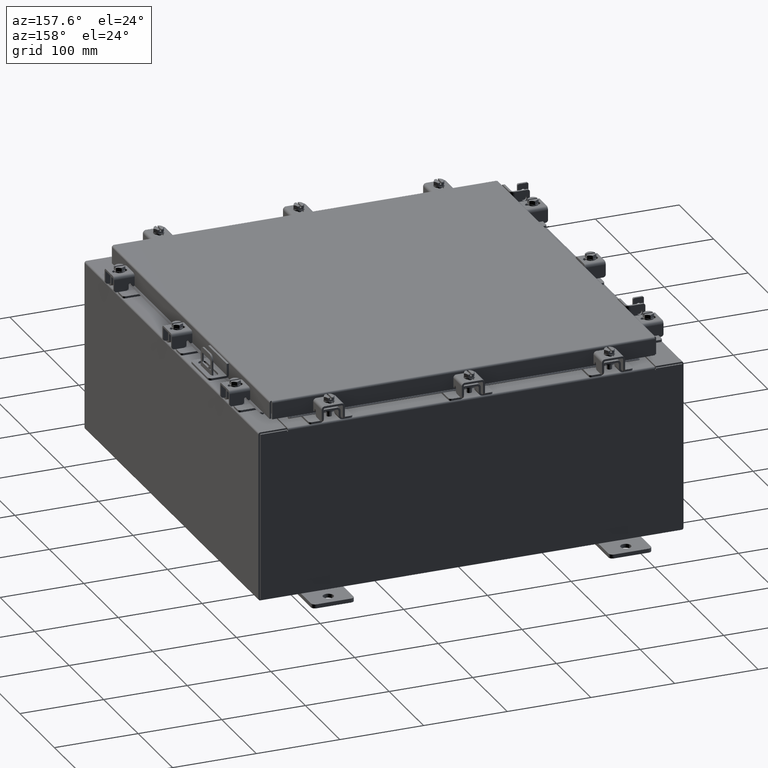
[diagram: clean part render]
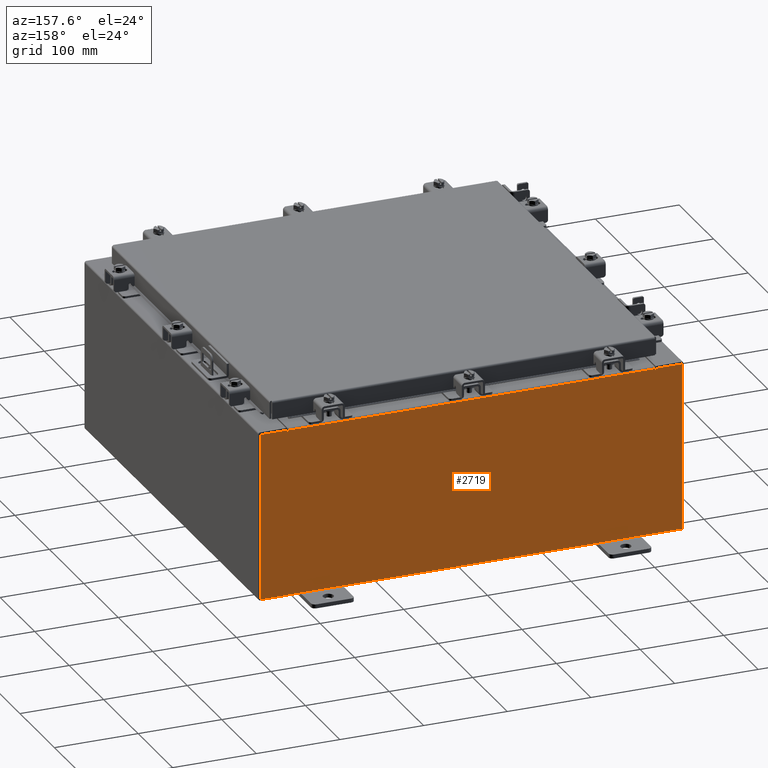
[diagram: same view with one face highlighted and labeled with its STEP entity id]
A machine part, auxiliary view. The second image highlights one B-rep face of the part: STEP entity #2719.
In plain terms, the highlighted planar face has unit normal (0, -1, 0).
Its self-contained STEP definition (entity closure, byte-faithful):
#117 = DIRECTION ( 'NONE',  ( 0.0000000000000000000, 0.0000000000000000000, -1.000000000000000000 ) ) ;
#328 = VERTEX_POINT ( 'NONE', #21224 ) ;
#347 = LINE ( 'NONE', #10814, #14259 ) ;
#425 = ORIENTED_EDGE ( 'NONE', *, *, #22102, .T. ) ;
#662 = VECTOR ( 'NONE', #8245, 39.37007874015748100 ) ;
#1311 = CARTESIAN_POINT ( 'NONE',  ( -9.925300000000000000, 0.0000000000000000000, 3.925299999999999600 ) ) ;
#1409 = CARTESIAN_POINT ( 'NONE',  ( -8.674549999999996400, 0.0000000000000000000, 3.925299999999999600 ) ) ;
#1565 = DIRECTION ( 'NONE',  ( 0.0000000000000000000, -0.0000000000000000000, -1.000000000000000000 ) ) ;
#1576 = DIRECTION ( 'NONE',  ( 0.0000000000000000000, 0.0000000000000000000, 1.000000000000000000 ) ) ;
#1751 = CARTESIAN_POINT ( 'NONE',  ( 8.674549999999747700, -0.0000000000000000000, -5.647877341832665300E-013 ) ) ;
#1822 = DIRECTION ( 'NONE',  ( 0.0000000000000000000, 0.0000000000000000000, -1.000000000000000000 ) ) ;
#2719 = ADVANCED_FACE ( 'NONE', ( #10620 ), #3084, .F. ) ;
#2794 = VECTOR ( 'NONE', #20768, 39.37007874015748100 ) ;
#2861 = DIRECTION ( 'NONE',  ( 0.0000000000000000000, -1.000000000000000000, 0.0000000000000000000 ) ) ;
#3023 = LINE ( 'NONE', #13218, #21031 ) ;
#3084 = PLANE ( 'NONE',  #21996 ) ;
#3567 = CARTESIAN_POINT ( 'NONE',  ( 9.925300000000000000, 0.0000000000000000000, 3.925299999999999600 ) ) ;
#3769 = DIRECTION ( 'NONE',  ( 1.000000000000000000, 0.0000000000000000000, 0.0000000000000000000 ) ) ;
#3801 = VECTOR ( 'NONE', #1576, 39.37007874015748100 ) ;
#3948 = VECTOR ( 'NONE', #19004, 39.37007874015748100 ) ;
#4382 = VECTOR ( 'NONE', #1822, 39.37007874015748100 ) ;
#5106 = CARTESIAN_POINT ( 'NONE',  ( 8.637200000000000000, 0.0000000000000000000, 0.0000000000000000000 ) ) ;
#5178 = EDGE_CURVE ( 'NONE', #328, #18174, #20114, .T. ) ;
#5309 = EDGE_CURVE ( 'NONE', #16034, #10215, #11675, .T. ) ;
#5311 = LINE ( 'NONE', #16983, #662 ) ;
#6102 = ORIENTED_EDGE ( 'NONE', *, *, #5309, .F. ) ;
#6505 = VECTOR ( 'NONE', #13958, 39.37007874015748100 ) ;
#6611 = CARTESIAN_POINT ( 'NONE',  ( 0.0000000000000000000, 0.0000000000000000000, 0.0000000000000000000 ) ) ;
#6727 = CARTESIAN_POINT ( 'NONE',  ( -9.925300000000000000, 0.0000000000000000000, 3.925299999999999600 ) ) ;
#7574 = CARTESIAN_POINT ( 'NONE',  ( 8.674550000000000000, 0.0000000000000000000, 3.874949999999999700 ) ) ;
#7597 = VERTEX_POINT ( 'NONE', #17817 ) ;
#7944 = EDGE_CURVE ( 'NONE', #11299, #17557, #5311, .T. ) ;
#8169 = EDGE_LOOP ( 'NONE', ( #22219, #6102, #18681, #13330, #18616, #9881, #19364, #425, #21926, #8385, #14285, #19288 ) ) ;
#8241 = DIRECTION ( 'NONE',  ( -0.0000000000000000000, 1.000000000000000000, -0.0000000000000000000 ) ) ;
#8245 = DIRECTION ( 'NONE',  ( 0.0000000000000000000, 0.0000000000000000000, -1.000000000000000000 ) ) ;
#8385 = ORIENTED_EDGE ( 'NONE', *, *, #14439, .T. ) ;
#8696 = EDGE_CURVE ( 'NONE', #9129, #22162, #13614, .T. ) ;
#9035 = CARTESIAN_POINT ( 'NONE',  ( 8.637200000000000000, 0.0000000000000000000, 3.912299999999999700 ) ) ;
#9129 = VERTEX_POINT ( 'NONE', #16770 ) ;
#9164 = CARTESIAN_POINT ( 'NONE',  ( -9.925300000000000000, 0.0000000000000000000, -3.925299999999999600 ) ) ;
#9205 = VECTOR ( 'NONE', #3769, 39.37007874015748100 ) ;
#9557 = LINE ( 'NONE', #20959, #4382 ) ;
#9679 = VERTEX_POINT ( 'NONE', #7574 ) ;
#9881 = ORIENTED_EDGE ( 'NONE', *, *, #18339, .F. ) ;
#10215 = VERTEX_POINT ( 'NONE', #14563 ) ;
#10369 = CARTESIAN_POINT ( 'NONE',  ( 9.925300000000000000, 0.0000000000000000000, -3.925299999999999600 ) ) ;
#10561 = DIRECTION ( 'NONE',  ( -0.0000000000000000000, 1.000000000000000000, -0.0000000000000000000 ) ) ;
#10620 = FACE_OUTER_BOUND ( 'NONE', #8169, .T. ) ;
#10814 = CARTESIAN_POINT ( 'NONE',  ( -8.637200000000000000, 1.024442997624098700E-016, 3.912299999999999700 ) ) ;
#11299 = VERTEX_POINT ( 'NONE', #3567 ) ;
#11499 = CARTESIAN_POINT ( 'NONE',  ( -8.637199999999996400, -0.0000000000000000000, 3.874949999999999700 ) ) ;
#11515 = VECTOR ( 'NONE', #17762, 39.37007874015748100 ) ;
#11675 = CIRCLE ( 'NONE', #18119, 0.01867500000000003900 ) ;
#12547 = EDGE_CURVE ( 'NONE', #14937, #328, #17882, .T. ) ;
#12574 = DIRECTION ( 'NONE',  ( 1.000000000000000000, 0.0000000000000000000, 0.0000000000000000000 ) ) ;
#13218 = CARTESIAN_POINT ( 'NONE',  ( -9.925300000000000000, 0.0000000000000000000, -3.925299999999999600 ) ) ;
#13330 = ORIENTED_EDGE ( 'NONE', *, *, #13517, .T. ) ;
#13517 = EDGE_CURVE ( 'NONE', #19567, #22162, #347, .T. ) ;
#13614 = LINE ( 'NONE', #5106, #3801 ) ;
#13958 = DIRECTION ( 'NONE',  ( -6.510859170600007400E-014, 0.0000000000000000000, -1.000000000000000000 ) ) ;
#14220 = EDGE_CURVE ( 'NONE', #10215, #18174, #20769, .T. ) ;
#14259 = VECTOR ( 'NONE', #12574, 39.37007874015748100 ) ;
#14285 = ORIENTED_EDGE ( 'NONE', *, *, #12547, .T. ) ;
#14439 = EDGE_CURVE ( 'NONE', #17557, #14937, #3023, .T. ) ;
#14563 = CARTESIAN_POINT ( 'NONE',  ( -8.674549999999996400, 0.0000000000000000000, 3.874949999999999700 ) ) ;
#14937 = VERTEX_POINT ( 'NONE', #9164 ) ;
#15252 = CARTESIAN_POINT ( 'NONE',  ( -8.637199999999996400, 1.024442997624098700E-016, 3.912299999999999700 ) ) ;
#16009 = CARTESIAN_POINT ( 'NONE',  ( -8.674549999999996400, -0.0000000000000000000, 0.0000000000000000000 ) ) ;
#16034 = VERTEX_POINT ( 'NONE', #11499 ) ;
#16406 = AXIS2_PLACEMENT_3D ( 'NONE', #20998, #10561, #117 ) ;
#16769 = LINE ( 'NONE', #19058, #2794 ) ;
#16770 = CARTESIAN_POINT ( 'NONE',  ( 8.637200000000000000, 0.0000000000000000000, 3.874949999999999700 ) ) ;
#16983 = CARTESIAN_POINT ( 'NONE',  ( 9.925300000000000000, 0.0000000000000000000, 3.925299999999999600 ) ) ;
#17557 = VERTEX_POINT ( 'NONE', #10369 ) ;
#17627 = EDGE_CURVE ( 'NONE', #19567, #16034, #9557, .T. ) ;
#17762 = DIRECTION ( 'NONE',  ( 0.0000000000000000000, 0.0000000000000000000, 1.000000000000000000 ) ) ;
#17817 = CARTESIAN_POINT ( 'NONE',  ( 8.674550000000001800, 0.0000000000000000000, 3.925299999999999600 ) ) ;
#17882 = LINE ( 'NONE', #6727, #3948 ) ;
#18119 = AXIS2_PLACEMENT_3D ( 'NONE', #18698, #8241, #20425 ) ;
#18174 = VERTEX_POINT ( 'NONE', #1409 ) ;
#18339 = EDGE_CURVE ( 'NONE', #9679, #9129, #20708, .T. ) ;
#18506 = DIRECTION ( 'NONE',  ( -1.000000000000000000, -0.0000000000000000000, -0.0000000000000000000 ) ) ;
#18616 = ORIENTED_EDGE ( 'NONE', *, *, #8696, .F. ) ;
#18681 = ORIENTED_EDGE ( 'NONE', *, *, #17627, .F. ) ;
#18698 = CARTESIAN_POINT ( 'NONE',  ( -8.655874999999996400, 0.0000000000000000000, 3.874949999999999700 ) ) ;
#19004 = DIRECTION ( 'NONE',  ( -0.0000000000000000000, -0.0000000000000000000, 1.000000000000000000 ) ) ;
#19058 = CARTESIAN_POINT ( 'NONE',  ( -9.925300000000000000, 0.0000000000000000000, 3.925299999999999600 ) ) ;
#19129 = EDGE_CURVE ( 'NONE', #7597, #9679, #19863, .T. ) ;
#19288 = ORIENTED_EDGE ( 'NONE', *, *, #5178, .T. ) ;
#19364 = ORIENTED_EDGE ( 'NONE', *, *, #19129, .F. ) ;
#19567 = VERTEX_POINT ( 'NONE', #15252 ) ;
#19863 = LINE ( 'NONE', #1751, #6505 ) ;
#20114 = LINE ( 'NONE', #1311, #9205 ) ;
#20425 = DIRECTION ( 'NONE',  ( 0.0000000000000000000, 0.0000000000000000000, -1.000000000000000000 ) ) ;
#20708 = CIRCLE ( 'NONE', #16406, 0.01867500000000003900 ) ;
#20768 = DIRECTION ( 'NONE',  ( 1.000000000000000000, 0.0000000000000000000, 0.0000000000000000000 ) ) ;
#20769 = LINE ( 'NONE', #16009, #11515 ) ;
#20959 = CARTESIAN_POINT ( 'NONE',  ( -8.637199999999996400, -0.0000000000000000000, 0.0000000000000000000 ) ) ;
#20998 = CARTESIAN_POINT ( 'NONE',  ( 8.655875000000000000, 0.0000000000000000000, 3.874949999999999700 ) ) ;
#21031 = VECTOR ( 'NONE', #18506, 39.37007874015748100 ) ;
#21224 = CARTESIAN_POINT ( 'NONE',  ( -9.925300000000000000, 0.0000000000000000000, 3.925299999999999600 ) ) ;
#21926 = ORIENTED_EDGE ( 'NONE', *, *, #7944, .T. ) ;
#21996 = AXIS2_PLACEMENT_3D ( 'NONE', #6611, #2861, #1565 ) ;
#22102 = EDGE_CURVE ( 'NONE', #7597, #11299, #16769, .T. ) ;
#22162 = VERTEX_POINT ( 'NONE', #9035 ) ;
#22219 = ORIENTED_EDGE ( 'NONE', *, *, #14220, .F. ) ;